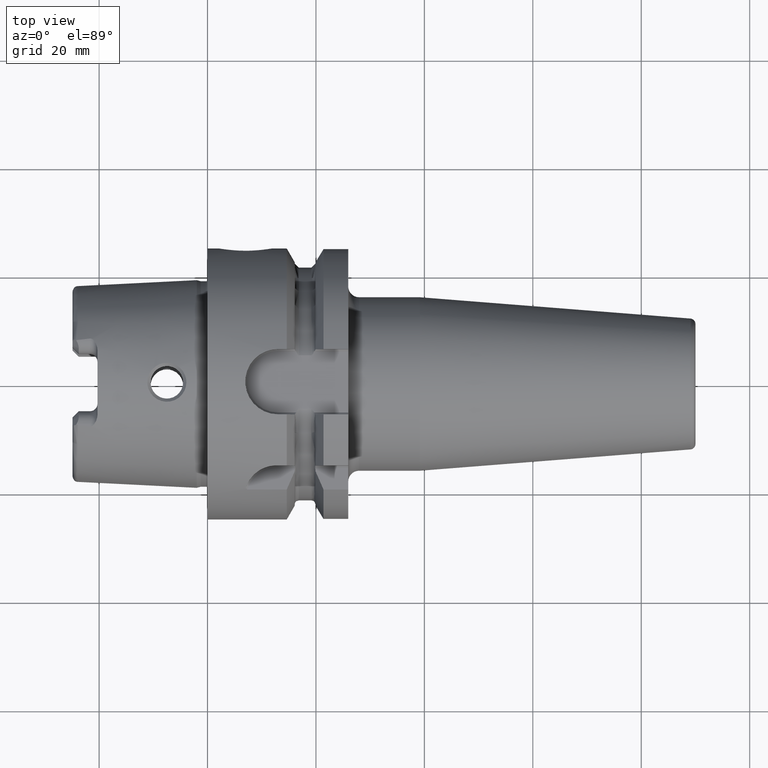
[diagram: clean part render]
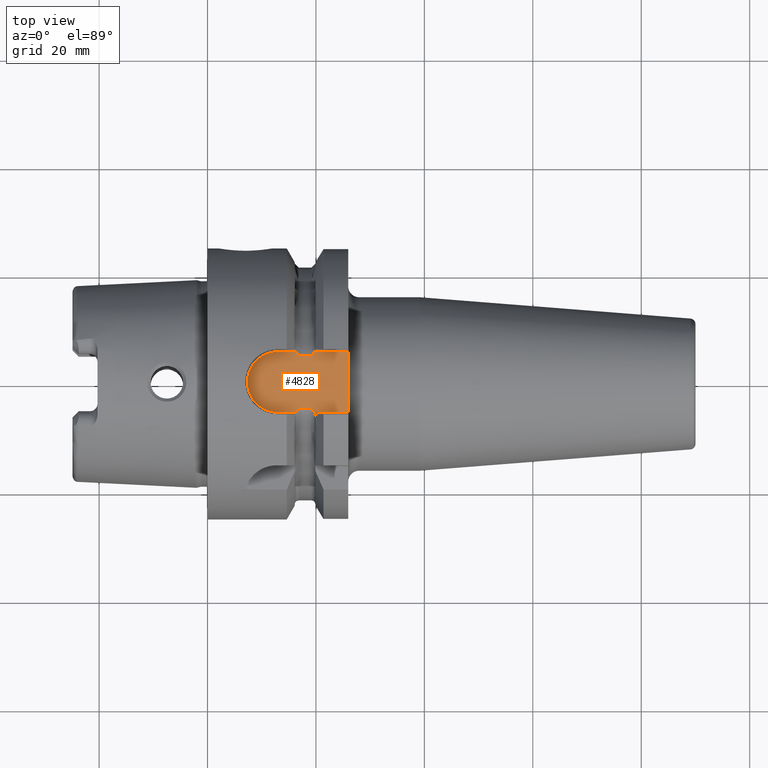
[diagram: same view with one face highlighted and labeled with its STEP entity id]
A machine part, top view. The second image highlights one B-rep face of the part: STEP entity #4828.
In plain terms, the highlighted planar face has unit normal (0, 0, 1).
Its self-contained STEP definition (entity closure, byte-faithful):
#1243=DIRECTION('',(-1.E0,0.E0,0.E0));
#1244=VECTOR('',#1243,2.325E0);
#1245=CARTESIAN_POINT('',(1.91625E1,4.936154880066E0,2.09E1));
#1246=LINE('',#1245,#1244);
#1256=DIRECTION('',(1.E0,0.E0,0.E0));
#1257=VECTOR('',#1256,2.325E0);
#1258=CARTESIAN_POINT('',(1.68375E1,-4.936154880066E0,2.09E1));
#1259=LINE('',#1258,#1257);
#1499=CARTESIAN_POINT('',(1.68375E1,4.936154880066E0,2.09E1));
#1500=CARTESIAN_POINT('',(1.681506439560E1,4.936154880066E0,2.09E1));
#1501=CARTESIAN_POINT('',(1.677123088673E1,4.944673497632E0,2.09E1));
#1502=CARTESIAN_POINT('',(1.670637256749E1,4.982476421130E0,2.09E1));
#1503=CARTESIAN_POINT('',(1.664900590224E1,5.036748664290E0,2.09E1));
#1504=CARTESIAN_POINT('',(1.659405185059E1,5.106990956188E0,2.09E1));
#1505=CARTESIAN_POINT('',(1.654315187720E1,5.189091223446E0,2.09E1));
#1506=CARTESIAN_POINT('',(1.649561034933E1,5.280901992625E0,2.09E1));
#1507=CARTESIAN_POINT('',(1.645046741239E1,5.382525577117E0,2.09E1));
#1508=CARTESIAN_POINT('',(1.640725659792E1,5.494029910782E0,2.09E1));
#1509=CARTESIAN_POINT('',(1.637953976626E1,5.575217300602E0,2.09E1));
#1510=CARTESIAN_POINT('',(1.636596485273E1,5.6175E0,2.09E1));
#1512=CARTESIAN_POINT('',(1.963403514727E1,5.6175E0,2.09E1));
#1513=CARTESIAN_POINT('',(1.962121105487E1,5.577555933860E0,2.09E1));
#1514=CARTESIAN_POINT('',(1.959433966091E1,5.498305669547E0,2.09E1));
#1515=CARTESIAN_POINT('',(1.954802760583E1,5.378400607294E0,2.09E1));
#1516=CARTESIAN_POINT('',(1.949825271637E1,5.267721187528E0,2.09E1));
#1517=CARTESIAN_POINT('',(1.944679938215E1,5.171347555465E0,2.09E1));
#1518=CARTESIAN_POINT('',(1.939476256373E1,5.091349730416E0,2.09E1));
#1519=CARTESIAN_POINT('',(1.934209978086E1,5.027407982916E0,2.09E1));
#1520=CARTESIAN_POINT('',(1.928722183018E1,4.978138118530E0,2.09E1));
#1521=CARTESIAN_POINT('',(1.922686285427E1,4.944417861259E0,2.09E1));
#1522=CARTESIAN_POINT('',(1.918440943347E1,4.936154880066E0,2.09E1));
#1523=CARTESIAN_POINT('',(1.91625E1,4.936154880066E0,2.09E1));
#1525=DIRECTION('',(1.E0,0.E0,0.E0));
#1526=VECTOR('',#1525,6.315964852731E0);
#1527=CARTESIAN_POINT('',(1.963403514727E1,5.6175E0,2.09E1));
#1528=LINE('',#1527,#1526);
#1529=DIRECTION('',(-1.E0,0.E0,0.E0));
#1530=VECTOR('',#1529,6.315964852731E0);
#1531=CARTESIAN_POINT('',(2.595E1,-5.6175E0,2.09E1));
#1532=LINE('',#1531,#1530);
#1533=CARTESIAN_POINT('',(1.91625E1,-4.936154880066E0,2.09E1));
#1534=CARTESIAN_POINT('',(1.918512572534E1,-4.936154880066E0,2.09E1));
#1535=CARTESIAN_POINT('',(1.922927798714E1,-4.944905345685E0,2.09E1));
#1536=CARTESIAN_POINT('',(1.929364299727E1,-4.982466702461E0,2.09E1));
#1537=CARTESIAN_POINT('',(1.935193358380E1,-5.037701592377E0,2.09E1));
#1538=CARTESIAN_POINT('',(1.940696398688E1,-5.108493844033E0,2.09E1));
#1539=CARTESIAN_POINT('',(1.945754115550E1,-5.190349964585E0,2.09E1));
#1540=CARTESIAN_POINT('',(1.950483688118E1,-5.281854502074E0,2.09E1));
#1541=CARTESIAN_POINT('',(1.954984677491E1,-5.383296798535E0,2.09E1));
#1542=CARTESIAN_POINT('',(1.959291205605E1,-5.494511889336E0,2.09E1));
#1543=CARTESIAN_POINT('',(1.962051721705E1,-5.575394790376E0,2.09E1));
#1544=CARTESIAN_POINT('',(1.963403514727E1,-5.6175E0,2.09E1));
#1546=CARTESIAN_POINT('',(1.636596485273E1,-5.6175E0,2.09E1));
#1547=CARTESIAN_POINT('',(1.637723073093E1,-5.582409408806E0,2.09E1));
#1548=CARTESIAN_POINT('',(1.640088079254E1,-5.512208770329E0,2.09E1));
#1549=CARTESIAN_POINT('',(1.644127677987E1,-5.405169222578E0,2.09E1));
#1550=CARTESIAN_POINT('',(1.648542523065E1,-5.302559468502E0,2.09E1));
#1551=CARTESIAN_POINT('',(1.653267499575E1,-5.208006963190E0,2.09E1));
#1552=CARTESIAN_POINT('',(1.658270514026E1,-5.123923103323E0,2.09E1));
#1553=CARTESIAN_POINT('',(1.663659931211E1,-5.050897729353E0,2.09E1));
#1554=CARTESIAN_POINT('',(1.669594649704E1,-4.990432118684E0,2.09E1));
#1555=CARTESIAN_POINT('',(1.676415776210E1,-4.946912528541E0,2.09E1));
#1556=CARTESIAN_POINT('',(1.681240342288E1,-4.936154880066E0,2.09E1));
#1557=CARTESIAN_POINT('',(1.68375E1,-4.936154880066E0,2.09E1));
#1559=DIRECTION('',(-1.E0,-7.852701927823E-8,-7.858421558079E-8));
#1560=VECTOR('',#1559,3.398464844756E0);
#1561=CARTESIAN_POINT('',(1.636596485273E1,-5.6175E0,2.09E1));
#1562=LINE('',#1561,#1560);
#1563=CARTESIAN_POINT('',(1.29675E1,0.E0,2.089999824116E1));
#1564=DIRECTION('',(0.E0,0.E0,-1.E0));
#1565=DIRECTION('',(0.E0,-1.E0,0.E0));
#1566=AXIS2_PLACEMENT_3D('',#1563,#1564,#1565);
#1568=DIRECTION('',(1.E0,-7.853913086518E-8,7.857210474843E-8));
#1569=VECTOR('',#1568,3.398464845393E0);
#1570=CARTESIAN_POINT('',(1.296750000734E1,5.617500266912E0,2.089999973298E1));
#1571=LINE('',#1570,#1569);
#1701=DIRECTION('',(0.E0,1.E0,0.E0));
#1702=VECTOR('',#1701,1.1235E1);
#1703=CARTESIAN_POINT('',(2.595E1,-5.6175E0,2.09E1));
#1704=LINE('',#1703,#1702);
#2978=CARTESIAN_POINT('',(1.68375E1,-4.936154880066E0,2.09E1));
#2980=VERTEX_POINT('',#2978);
#2981=CARTESIAN_POINT('',(1.68375E1,4.936154880066E0,2.09E1));
#2983=VERTEX_POINT('',#2981);
#2986=CARTESIAN_POINT('',(1.91625E1,-4.936154880066E0,2.09E1));
#2988=VERTEX_POINT('',#2986);
#2989=CARTESIAN_POINT('',(1.91625E1,4.936154880066E0,2.09E1));
#2991=VERTEX_POINT('',#2989);
#2995=VERTEX_POINT('',#1510);
#2996=VERTEX_POINT('',#1546);
#2997=VERTEX_POINT('',#1512);
#2998=VERTEX_POINT('',#1544);
#3022=CARTESIAN_POINT('',(1.29675E1,-5.617499842972E0,2.089999824116E1));
#3023=CARTESIAN_POINT('',(1.29675E1,5.617499842972E0,2.089999824116E1));
#3024=VERTEX_POINT('',#3022);
#3025=VERTEX_POINT('',#3023);
#3034=CARTESIAN_POINT('',(2.595E1,-5.6175E0,2.09E1));
#3036=VERTEX_POINT('',#3034);
#3039=CARTESIAN_POINT('',(2.595E1,5.6175E0,2.09E1));
#3041=VERTEX_POINT('',#3039);
#4803=CARTESIAN_POINT('',(0.E0,0.E0,2.09E1));
#4804=DIRECTION('',(0.E0,0.E0,1.E0));
#4805=DIRECTION('',(1.E0,0.E0,0.E0));
#4806=AXIS2_PLACEMENT_3D('',#4803,#4804,#4805);
#4807=PLANE('',#4806);
#4808=ORIENTED_EDGE('',*,*,#4568,.F.);
#4809=ORIENTED_EDGE('',*,*,#4587,.F.);
#4811=ORIENTED_EDGE('',*,*,#4810,.F.);
#4812=ORIENTED_EDGE('',*,*,#4798,.T.);
#4814=ORIENTED_EDGE('',*,*,#4813,.F.);
#4816=ORIENTED_EDGE('',*,*,#4815,.T.);
#4818=ORIENTED_EDGE('',*,*,#4817,.F.);
#4819=ORIENTED_EDGE('',*,*,#4600,.F.);
#4820=ORIENTED_EDGE('',*,*,#4551,.F.);
#4822=ORIENTED_EDGE('',*,*,#4821,.T.);
#4824=ORIENTED_EDGE('',*,*,#4823,.T.);
#4825=ORIENTED_EDGE('',*,*,#4780,.T.);
#4826=EDGE_LOOP('',(#4808,#4809,#4811,#4812,#4814,#4816,#4818,#4819,#4820,#4822,
#4824,#4825));
#4827=FACE_OUTER_BOUND('',#4826,.F.);
#4828=ADVANCED_FACE('',(#4827),#4807,.T.);
#1511=B_SPLINE_CURVE_WITH_KNOTS('',3,(#1499,#1500,#1501,#1502,#1503,#1504,#1505,
#1506,#1507,#1508,#1509,#1510),.UNSPECIFIED.,.F.,.F.,(4,1,1,1,1,1,1,1,1,4),
(0.E0,1.111111111111E-1,2.222222222222E-1,3.333333333333E-1,4.444444444444E-1,
5.555555555556E-1,6.666666666667E-1,7.777777777778E-1,8.888888888889E-1,1.E0),
.UNSPECIFIED.);
#1524=B_SPLINE_CURVE_WITH_KNOTS('',3,(#1512,#1513,#1514,#1515,#1516,#1517,#1518,
#1519,#1520,#1521,#1522,#1523),.UNSPECIFIED.,.F.,.F.,(4,1,1,1,1,1,1,1,1,4),
(0.E0,1.111111111111E-1,2.222222222222E-1,3.333333333333E-1,4.444444444444E-1,
5.555555555556E-1,6.666666666667E-1,7.777777777778E-1,8.888888888889E-1,1.E0),
.UNSPECIFIED.);
#1545=B_SPLINE_CURVE_WITH_KNOTS('',3,(#1533,#1534,#1535,#1536,#1537,#1538,#1539,
#1540,#1541,#1542,#1543,#1544),.UNSPECIFIED.,.F.,.F.,(4,1,1,1,1,1,1,1,1,4),
(0.E0,1.111111111111E-1,2.222222222222E-1,3.333333333333E-1,4.444444444444E-1,
5.555555555556E-1,6.666666666667E-1,7.777777777778E-1,8.888888888889E-1,1.E0),
.UNSPECIFIED.);
#1558=B_SPLINE_CURVE_WITH_KNOTS('',3,(#1546,#1547,#1548,#1549,#1550,#1551,#1552,
#1553,#1554,#1555,#1556,#1557),.UNSPECIFIED.,.F.,.F.,(4,1,1,1,1,1,1,1,1,4),
(0.E0,1.111111111111E-1,2.222222222222E-1,3.333333333333E-1,4.444444444444E-1,
5.555555555556E-1,6.666666666667E-1,7.777777777778E-1,8.888888888889E-1,1.E0),
.UNSPECIFIED.);
#1567=CIRCLE('',#1566,5.617499842972E0);
#4551=EDGE_CURVE('',#2996,#2980,#1558,.T.);
#4568=EDGE_CURVE('',#2983,#2995,#1511,.T.);
#4587=EDGE_CURVE('',#2991,#2983,#1246,.T.);
#4600=EDGE_CURVE('',#2980,#2988,#1259,.T.);
#4780=EDGE_CURVE('',#3025,#2995,#1571,.T.);
#4798=EDGE_CURVE('',#2997,#3041,#1528,.T.);
#4810=EDGE_CURVE('',#2997,#2991,#1524,.T.);
#4813=EDGE_CURVE('',#3036,#3041,#1704,.T.);
#4815=EDGE_CURVE('',#3036,#2998,#1532,.T.);
#4817=EDGE_CURVE('',#2988,#2998,#1545,.T.);
#4821=EDGE_CURVE('',#2996,#3024,#1562,.T.);
#4823=EDGE_CURVE('',#3024,#3025,#1567,.T.);